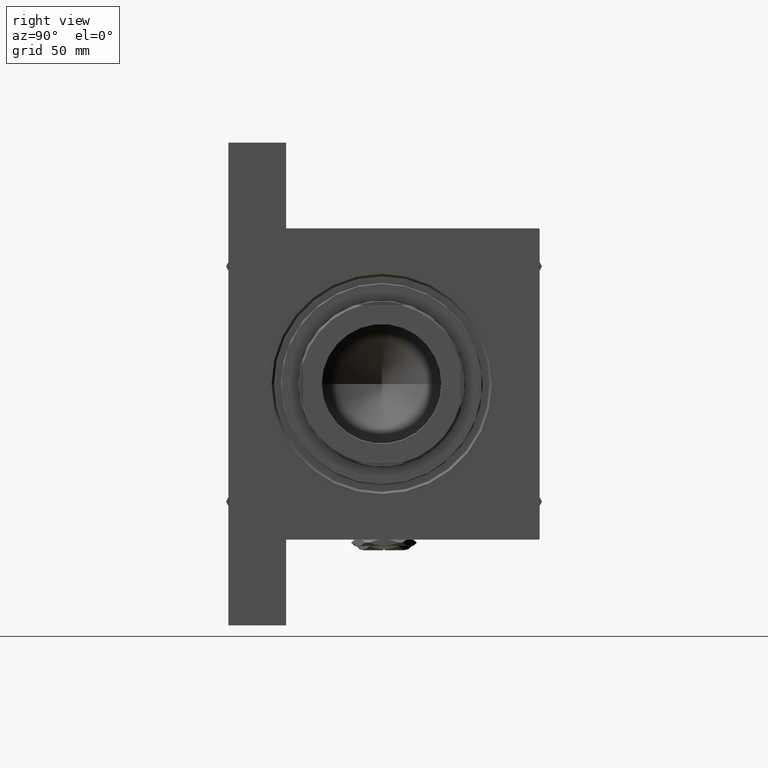
[diagram: clean part render]
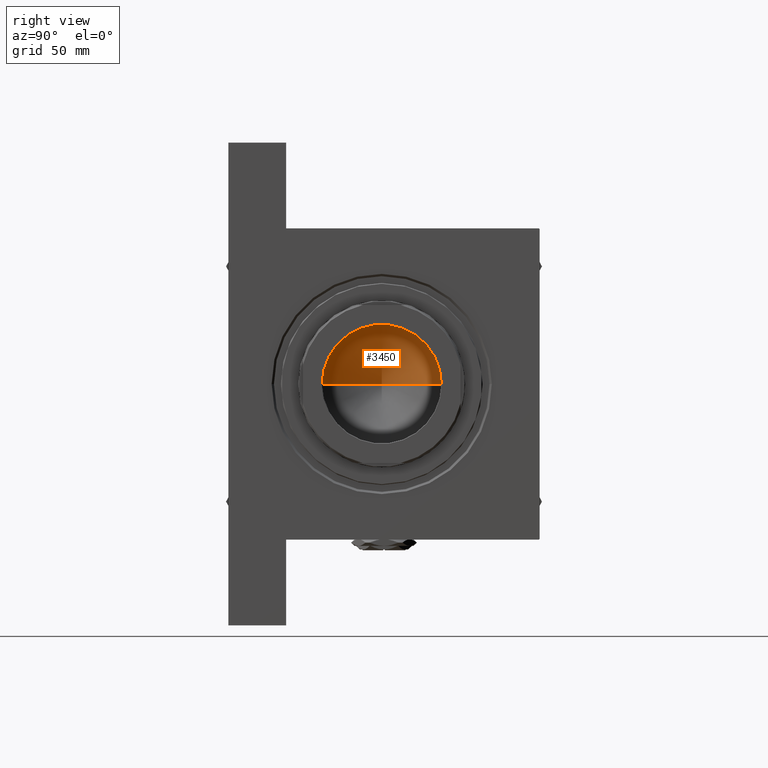
[diagram: same view with one face highlighted and labeled with its STEP entity id]
A machine part, right view. The second image highlights one B-rep face of the part: STEP entity #3450.
In plain terms, the highlighted conical surface has half-angle 59 deg.
Its self-contained STEP definition (entity closure, byte-faithful):
#2153 = VERTEX_POINT ( 'NONE', #10938 ) ;
#3298 = CONICAL_SURFACE ( 'NONE', #26786, 39.24999999999998579, 1.029744258676653201 ) ;
#3450 = ADVANCED_FACE ( 'NONE', ( #34456 ), #3298, .F. ) ;
#4358 = DIRECTION ( 'NONE',  ( -0.000000000000000000, -0.000000000000000000, 1.000000000000000000 ) ) ;
#4410 = EDGE_LOOP ( 'NONE', ( #12132, #7828, #17351 ) ) ;
#7828 = ORIENTED_EDGE ( 'NONE', *, *, #32333, .T. ) ;
#9091 = DIRECTION ( 'NONE',  ( 0.8571673007021116675, 0.000000000000000000, 0.5150380749100552658 ) ) ;
#10938 = CARTESIAN_POINT ( 'NONE',  ( -39.24999999999998579, 4.806738686653360087E-15, 104.9999999999999858 ) ) ;
#12132 = ORIENTED_EDGE ( 'NONE', *, *, #22250, .F. ) ;
#15203 = CARTESIAN_POINT ( 'NONE',  ( -39.24999999999998579, 4.806738686653360087E-15, 104.9999999999999858 ) ) ;
#16060 = EDGE_CURVE ( 'NONE', #2153, #47986, #22724, .T. ) ;
#17351 = ORIENTED_EDGE ( 'NONE', *, *, #16060, .T. ) ;
#18453 = DIRECTION ( 'NONE',  ( -0.000000000000000000, -0.000000000000000000, 1.000000000000000000 ) ) ;
#19819 = DIRECTION ( 'NONE',  ( 1.000000000000000000, 0.000000000000000000, 0.000000000000000000 ) ) ;
#22223 = CARTESIAN_POINT ( 'NONE',  ( -3.318838890392715616E-14, 0.000000000000000000, 81.41622070316820725 ) ) ;
#22250 = EDGE_CURVE ( 'NONE', #48684, #47986, #27883, .T. ) ;
#22724 = CIRCLE ( 'NONE', #48635, 39.24999999999998579 ) ;
#26627 = DIRECTION ( 'NONE',  ( -0.8571673007021116675, 1.049727191138617833E-16, 0.5150380749100552658 ) ) ;
#26786 = AXIS2_PLACEMENT_3D ( 'NONE', #49671, #18453, #30396 ) ;
#27883 = LINE ( 'NONE', #40023, #35003 ) ;
#30143 = CARTESIAN_POINT ( 'NONE',  ( 39.24999999999998579, 0.000000000000000000, 104.9999999999999858 ) ) ;
#30396 = DIRECTION ( 'NONE',  ( 1.000000000000000000, 0.000000000000000000, 0.000000000000000000 ) ) ;
#32333 = EDGE_CURVE ( 'NONE', #48684, #2153, #34749, .T. ) ;
#34456 = FACE_OUTER_BOUND ( 'NONE', #4410, .T. ) ;
#34749 = LINE ( 'NONE', #15203, #43397 ) ;
#35003 = VECTOR ( 'NONE', #9091, 1000.000000000000000 ) ;
#40023 = CARTESIAN_POINT ( 'NONE',  ( 39.24999999999998579, 0.000000000000000000, 104.9999999999999858 ) ) ;
#43397 = VECTOR ( 'NONE', #26627, 1000.000000000000000 ) ;
#46962 = CARTESIAN_POINT ( 'NONE',  ( 0.000000000000000000, 0.000000000000000000, 104.9999999999999858 ) ) ;
#47986 = VERTEX_POINT ( 'NONE', #30143 ) ;
#48635 = AXIS2_PLACEMENT_3D ( 'NONE', #46962, #4358, #19819 ) ;
#48684 = VERTEX_POINT ( 'NONE', #22223 ) ;
#49671 = CARTESIAN_POINT ( 'NONE',  ( 0.000000000000000000, 0.000000000000000000, 104.9999999999999858 ) ) ;